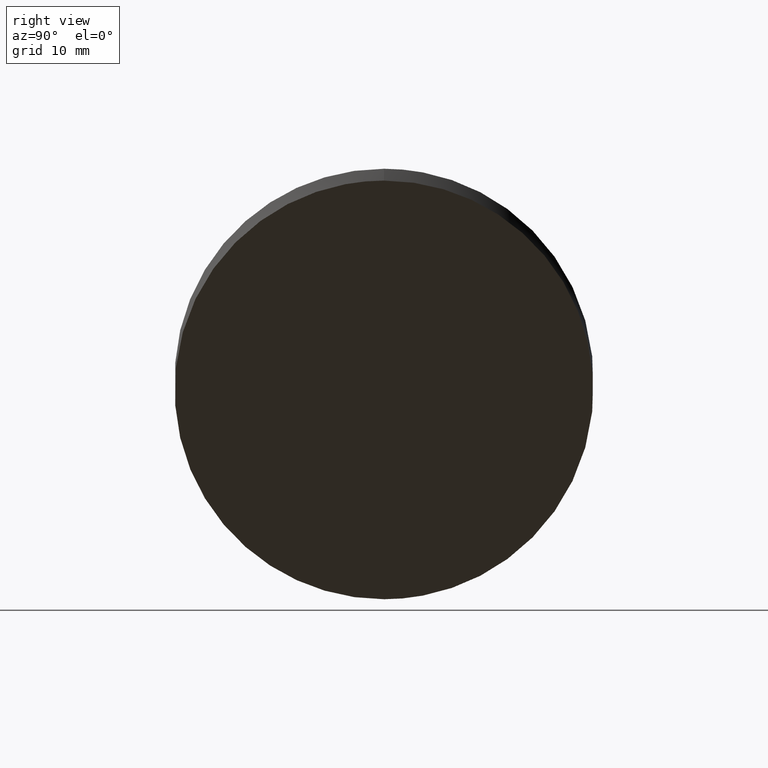
[diagram: clean part render]
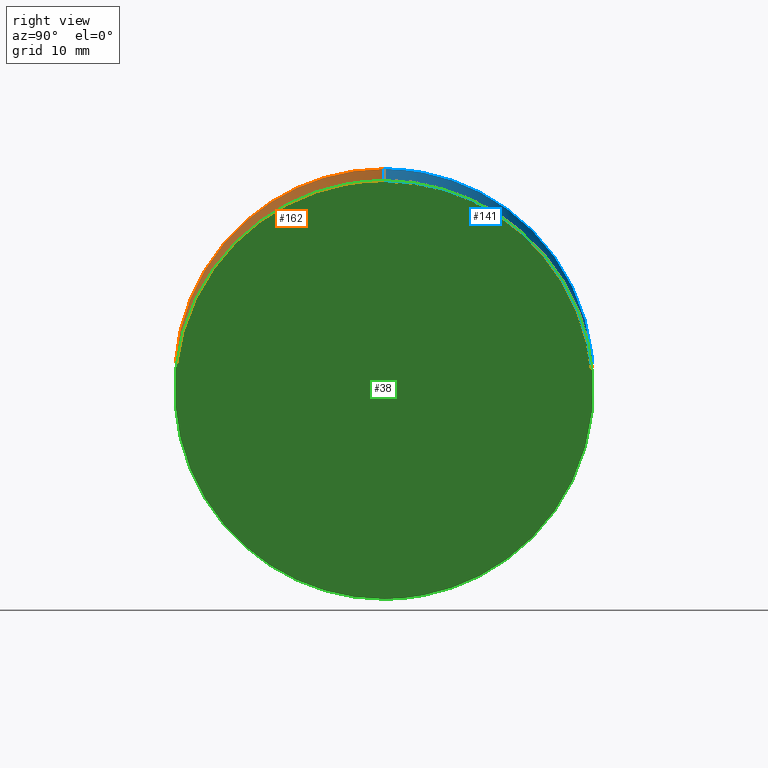
[diagram: same view with three faces highlighted in distinct colors, each labeled with its STEP entity id]
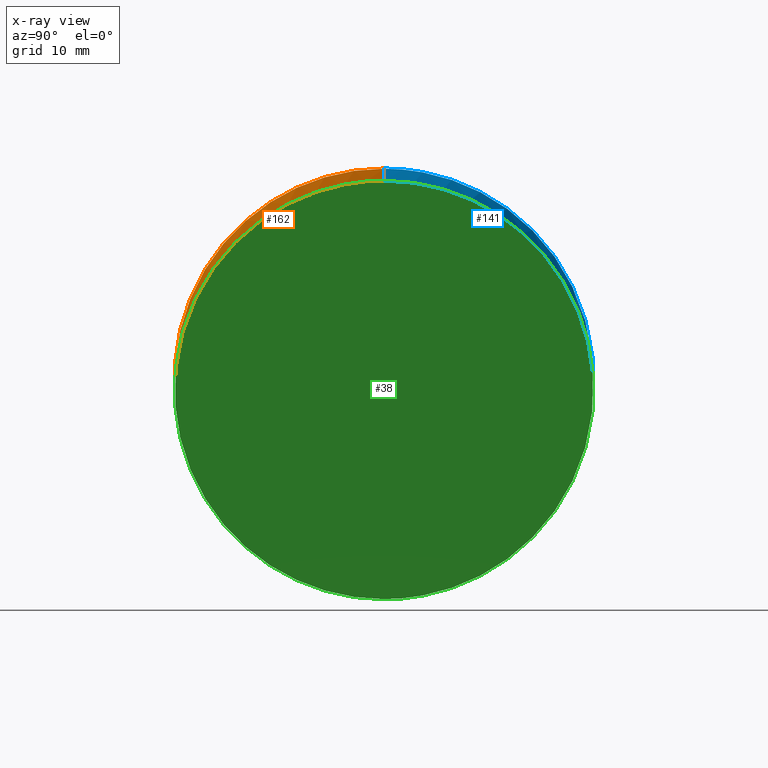
[diagram: x-ray of the same camera — body ghosted, the three highlighted faces saturated]
A machine part, right view with three faces highlighted in distinct colors.
The next image is the same camera in x-ray (body ghosted, the three faces saturated) — at least one of them is partly hidden behind the body in this view.
Their STEP definitions:

[orange] entity #162 — the highlighted cylindrical surface (partial cylindrical patch) has radius 25 mm, axis along (-0, -0, -1).
#1 = VERTEX_POINT ( 'NONE', #118 ) ;
#2 = AXIS2_PLACEMENT_3D ( 'NONE', #39, #83, #160 ) ;
#5 = CARTESIAN_POINT ( 'NONE',  ( -25.00000000000000000, 0.000000000000000000, 7.366540713605735036 ) ) ;
#10 = CARTESIAN_POINT ( 'NONE',  ( 25.00000000000000000, 3.061616997868382254E-15, 55.95232715123241007 ) ) ;
#13 = ORIENTED_EDGE ( 'NONE', *, *, #40, .T. ) ;
#21 = CARTESIAN_POINT ( 'NONE',  ( -25.00000000000001066, -49.99999999999997868, 5.952327151232617020 ) ) ;
#29 = EDGE_CURVE ( 'NONE', #101, #1, #92, .T. ) ;
#30 = ORIENTED_EDGE ( 'NONE', *, *, #110, .F. ) ;
#39 = CARTESIAN_POINT ( 'NONE',  ( 0.000000000000000000, 0.000000000000000000, 61.00000000000001421 ) ) ;
#40 = EDGE_CURVE ( 'NONE', #1, #66, #93, .T. ) ;
#42 =( BOUNDED_CURVE ( )  B_SPLINE_CURVE ( 3, ( #164, #21, #126, #97 ),
 .UNSPECIFIED., .F., .T. ) 
 B_SPLINE_CURVE_WITH_KNOTS ( ( 4, 4 ),
 ( 0.000000000000000000, 3.141592653589793116 ),
 .UNSPECIFIED. ) 
 CURVE ( )  GEOMETRIC_REPRESENTATION_ITEM ( )  RATIONAL_B_SPLINE_CURVE ( ( 1.000000000000000000, 0.3333333333333333703, 0.3333333333333333703, 1.000000000000000000 ) ) 
 REPRESENTATION_ITEM ( '' )  );
#54 = DIRECTION ( 'NONE',  ( -0.000000000000000000, -0.000000000000000000, -1.000000000000000000 ) ) ;
#62 = CARTESIAN_POINT ( 'NONE',  ( -25.00000000000000000, 0.000000000000000000, 61.00000000000001421 ) ) ;
#66 = VERTEX_POINT ( 'NONE', #161 ) ;
#67 = CARTESIAN_POINT ( 'NONE',  ( 25.00000000000001066, -50.00000000000000000, 57.36654071360556628 ) ) ;
#69 = CARTESIAN_POINT ( 'NONE',  ( 25.00000000000000000, 3.061616997868382254E-15, 61.00000000000001421 ) ) ;
#82 = FACE_OUTER_BOUND ( 'NONE', #152, .T. ) ;
#83 = DIRECTION ( 'NONE',  ( -0.000000000000000000, -0.000000000000000000, -1.000000000000000000 ) ) ;
#89 = CARTESIAN_POINT ( 'NONE',  ( -25.00000000000001066, -50.00000000000000000, 7.366540713605732371 ) ) ;
#92 =( BOUNDED_CURVE ( )  B_SPLINE_CURVE ( 3, ( #154, #67, #89, #5 ),
 .UNSPECIFIED., .F., .F. ) 
 B_SPLINE_CURVE_WITH_KNOTS ( ( 4, 4 ),
 ( 3.141592653589793116, 6.283185307179586232 ),
 .UNSPECIFIED. ) 
 CURVE ( )  GEOMETRIC_REPRESENTATION_ITEM ( )  RATIONAL_B_SPLINE_CURVE ( ( 1.000000000000000000, 0.3333333333333333703, 0.3333333333333333703, 1.000000000000000000 ) ) 
 REPRESENTATION_ITEM ( '' )  );
#93 = LINE ( 'NONE', #62, #163 ) ;
#97 = CARTESIAN_POINT ( 'NONE',  ( 25.00000000000000000, 3.061616997868382254E-15, 55.95232715123241007 ) ) ;
#101 = VERTEX_POINT ( 'NONE', #109 ) ;
#109 = CARTESIAN_POINT ( 'NONE',  ( 25.00000000000000000, 3.061616997868382254E-15, 57.36654071360555918 ) ) ;
#110 = EDGE_CURVE ( 'NONE', #101, #113, #158, .T. ) ;
#113 = VERTEX_POINT ( 'NONE', #10 ) ;
#114 = VECTOR ( 'NONE', #54, 1000.000000000000000 ) ;
#115 = ORIENTED_EDGE ( 'NONE', *, *, #150, .T. ) ;
#118 = CARTESIAN_POINT ( 'NONE',  ( -25.00000000000000000, 0.000000000000000000, 7.366540713605735036 ) ) ;
#126 = CARTESIAN_POINT ( 'NONE',  ( 25.00000000000000000, -49.99999999999997868, 55.95232715123241007 ) ) ;
#130 = ORIENTED_EDGE ( 'NONE', *, *, #29, .T. ) ;
#138 = CYLINDRICAL_SURFACE ( 'NONE', #2, 25.00000000000000000 ) ;
#146 = DIRECTION ( 'NONE',  ( -0.000000000000000000, -0.000000000000000000, -1.000000000000000000 ) ) ;
#150 = EDGE_CURVE ( 'NONE', #66, #113, #42, .T. ) ;
#152 = EDGE_LOOP ( 'NONE', ( #30, #130, #13, #115 ) ) ;
#154 = CARTESIAN_POINT ( 'NONE',  ( 25.00000000000000000, 3.061616997868382254E-15, 57.36654071360555918 ) ) ;
#158 = LINE ( 'NONE', #69, #114 ) ;
#160 = DIRECTION ( 'NONE',  ( -1.000000000000000000, 0.000000000000000000, 0.000000000000000000 ) ) ;
#161 = CARTESIAN_POINT ( 'NONE',  ( -25.00000000000000000, 0.000000000000000000, 5.952327151232624125 ) ) ;
#162 = ADVANCED_FACE ( 'NONE', ( #82 ), #138, .T. ) ;
#163 = VECTOR ( 'NONE', #146, 1000.000000000000000 ) ;
#164 = CARTESIAN_POINT ( 'NONE',  ( -25.00000000000000000, 0.000000000000000000, 5.952327151232624125 ) ) ;

[blue] entity #141 — the highlighted cylindrical surface (partial cylindrical patch) has radius 25 mm, axis along (-0, -0, -1).
#1 = VERTEX_POINT ( 'NONE', #118 ) ;
#10 = CARTESIAN_POINT ( 'NONE',  ( 25.00000000000000000, 3.061616997868382254E-15, 55.95232715123241007 ) ) ;
#14 = EDGE_CURVE ( 'NONE', #1, #101, #34, .T. ) ;
#23 = CARTESIAN_POINT ( 'NONE',  ( 25.00000000000002132, 49.99999999999997868, 55.95232715123243139 ) ) ;
#25 = CARTESIAN_POINT ( 'NONE',  ( -25.00000000000001066, 49.99999999999997868, 5.952327151232617020 ) ) ;
#34 =( BOUNDED_CURVE ( )  B_SPLINE_CURVE ( 3, ( #144, #46, #76, #132 ),
 .UNSPECIFIED., .F., .F. ) 
 B_SPLINE_CURVE_WITH_KNOTS ( ( 4, 4 ),
 ( 0.000000000000000000, 3.141592653589793116 ),
 .UNSPECIFIED. ) 
 CURVE ( )  GEOMETRIC_REPRESENTATION_ITEM ( )  RATIONAL_B_SPLINE_CURVE ( ( 1.000000000000000000, 0.3333333333333333703, 0.3333333333333333703, 1.000000000000000000 ) ) 
 REPRESENTATION_ITEM ( '' )  );
#40 = EDGE_CURVE ( 'NONE', #1, #66, #93, .T. ) ;
#44 = ORIENTED_EDGE ( 'NONE', *, *, #14, .T. ) ;
#46 = CARTESIAN_POINT ( 'NONE',  ( -25.00000000000001066, 50.00000000000000000, 7.366540713605732371 ) ) ;
#54 = DIRECTION ( 'NONE',  ( -0.000000000000000000, -0.000000000000000000, -1.000000000000000000 ) ) ;
#56 = DIRECTION ( 'NONE',  ( -0.000000000000000000, -0.000000000000000000, -1.000000000000000000 ) ) ;
#59 = ORIENTED_EDGE ( 'NONE', *, *, #110, .T. ) ;
#62 = CARTESIAN_POINT ( 'NONE',  ( -25.00000000000000000, 0.000000000000000000, 61.00000000000001421 ) ) ;
#66 = VERTEX_POINT ( 'NONE', #161 ) ;
#69 = CARTESIAN_POINT ( 'NONE',  ( 25.00000000000000000, 3.061616997868382254E-15, 61.00000000000001421 ) ) ;
#70 = EDGE_CURVE ( 'NONE', #113, #66, #129, .T. ) ;
#74 = ORIENTED_EDGE ( 'NONE', *, *, #40, .F. ) ;
#76 = CARTESIAN_POINT ( 'NONE',  ( 25.00000000000000000, 50.00000000000000000, 57.36654071360555207 ) ) ;
#87 = ORIENTED_EDGE ( 'NONE', *, *, #70, .T. ) ;
#93 = LINE ( 'NONE', #62, #163 ) ;
#95 = CARTESIAN_POINT ( 'NONE',  ( 25.00000000000000000, 3.061616997868382254E-15, 55.95232715123241007 ) ) ;
#101 = VERTEX_POINT ( 'NONE', #109 ) ;
#106 = EDGE_LOOP ( 'NONE', ( #44, #59, #87, #74 ) ) ;
#109 = CARTESIAN_POINT ( 'NONE',  ( 25.00000000000000000, 3.061616997868382254E-15, 57.36654071360555918 ) ) ;
#110 = EDGE_CURVE ( 'NONE', #101, #113, #158, .T. ) ;
#111 = CARTESIAN_POINT ( 'NONE',  ( 0.000000000000000000, 0.000000000000000000, 61.00000000000001421 ) ) ;
#113 = VERTEX_POINT ( 'NONE', #10 ) ;
#114 = VECTOR ( 'NONE', #54, 1000.000000000000000 ) ;
#118 = CARTESIAN_POINT ( 'NONE',  ( -25.00000000000000000, 0.000000000000000000, 7.366540713605735036 ) ) ;
#127 = CYLINDRICAL_SURFACE ( 'NONE', #156, 25.00000000000000000 ) ;
#129 =( BOUNDED_CURVE ( )  B_SPLINE_CURVE ( 3, ( #95, #23, #25, #174 ),
 .UNSPECIFIED., .F., .T. ) 
 B_SPLINE_CURVE_WITH_KNOTS ( ( 4, 4 ),
 ( 3.141592653589793116, 6.283185307179586232 ),
 .UNSPECIFIED. ) 
 CURVE ( )  GEOMETRIC_REPRESENTATION_ITEM ( )  RATIONAL_B_SPLINE_CURVE ( ( 1.000000000000000000, 0.3333333333333333703, 0.3333333333333333703, 1.000000000000000000 ) ) 
 REPRESENTATION_ITEM ( '' )  );
#132 = CARTESIAN_POINT ( 'NONE',  ( 25.00000000000000000, 3.061616997868382254E-15, 57.36654071360555918 ) ) ;
#139 = FACE_OUTER_BOUND ( 'NONE', #106, .T. ) ;
#141 = ADVANCED_FACE ( 'NONE', ( #139 ), #127, .T. ) ;
#144 = CARTESIAN_POINT ( 'NONE',  ( -25.00000000000000000, 0.000000000000000000, 7.366540713605735036 ) ) ;
#146 = DIRECTION ( 'NONE',  ( -0.000000000000000000, -0.000000000000000000, -1.000000000000000000 ) ) ;
#156 = AXIS2_PLACEMENT_3D ( 'NONE', #111, #56, #175 ) ;
#158 = LINE ( 'NONE', #69, #114 ) ;
#161 = CARTESIAN_POINT ( 'NONE',  ( -25.00000000000000000, 0.000000000000000000, 5.952327151232624125 ) ) ;
#163 = VECTOR ( 'NONE', #146, 1000.000000000000000 ) ;
#174 = CARTESIAN_POINT ( 'NONE',  ( -25.00000000000000000, 0.000000000000000000, 5.952327151232624125 ) ) ;
#175 = DIRECTION ( 'NONE',  ( -1.000000000000000000, 0.000000000000000000, 0.000000000000000000 ) ) ;

[green] entity #38 — the highlighted planar face has unit normal (-0.7071, 0, 0.7071).
#10 = CARTESIAN_POINT ( 'NONE',  ( 25.00000000000000000, 3.061616997868382254E-15, 55.95232715123241007 ) ) ;
#11 = AXIS2_PLACEMENT_3D ( 'NONE', #48, #51, #155 ) ;
#21 = CARTESIAN_POINT ( 'NONE',  ( -25.00000000000001066, -49.99999999999997868, 5.952327151232617020 ) ) ;
#23 = CARTESIAN_POINT ( 'NONE',  ( 25.00000000000002132, 49.99999999999997868, 55.95232715123243139 ) ) ;
#25 = CARTESIAN_POINT ( 'NONE',  ( -25.00000000000001066, 49.99999999999997868, 5.952327151232617020 ) ) ;
#38 = ADVANCED_FACE ( 'NONE', ( #120 ), #171, .F. ) ;
#42 =( BOUNDED_CURVE ( )  B_SPLINE_CURVE ( 3, ( #164, #21, #126, #97 ),
 .UNSPECIFIED., .F., .T. ) 
 B_SPLINE_CURVE_WITH_KNOTS ( ( 4, 4 ),
 ( 0.000000000000000000, 3.141592653589793116 ),
 .UNSPECIFIED. ) 
 CURVE ( )  GEOMETRIC_REPRESENTATION_ITEM ( )  RATIONAL_B_SPLINE_CURVE ( ( 1.000000000000000000, 0.3333333333333333703, 0.3333333333333333703, 1.000000000000000000 ) ) 
 REPRESENTATION_ITEM ( '' )  );
#48 = CARTESIAN_POINT ( 'NONE',  ( -37.53059138547573781, -30.50000000000000711, -6.578264234243048847 ) ) ;
#51 = DIRECTION ( 'NONE',  ( -0.7071067811865461294, 0.000000000000000000, 0.7071067811865490160 ) ) ;
#61 = ORIENTED_EDGE ( 'NONE', *, *, #70, .F. ) ;
#66 = VERTEX_POINT ( 'NONE', #161 ) ;
#70 = EDGE_CURVE ( 'NONE', #113, #66, #129, .T. ) ;
#95 = CARTESIAN_POINT ( 'NONE',  ( 25.00000000000000000, 3.061616997868382254E-15, 55.95232715123241007 ) ) ;
#97 = CARTESIAN_POINT ( 'NONE',  ( 25.00000000000000000, 3.061616997868382254E-15, 55.95232715123241007 ) ) ;
#112 = EDGE_LOOP ( 'NONE', ( #117, #61 ) ) ;
#113 = VERTEX_POINT ( 'NONE', #10 ) ;
#117 = ORIENTED_EDGE ( 'NONE', *, *, #150, .F. ) ;
#120 = FACE_OUTER_BOUND ( 'NONE', #112, .T. ) ;
#126 = CARTESIAN_POINT ( 'NONE',  ( 25.00000000000000000, -49.99999999999997868, 55.95232715123241007 ) ) ;
#129 =( BOUNDED_CURVE ( )  B_SPLINE_CURVE ( 3, ( #95, #23, #25, #174 ),
 .UNSPECIFIED., .F., .T. ) 
 B_SPLINE_CURVE_WITH_KNOTS ( ( 4, 4 ),
 ( 3.141592653589793116, 6.283185307179586232 ),
 .UNSPECIFIED. ) 
 CURVE ( )  GEOMETRIC_REPRESENTATION_ITEM ( )  RATIONAL_B_SPLINE_CURVE ( ( 1.000000000000000000, 0.3333333333333333703, 0.3333333333333333703, 1.000000000000000000 ) ) 
 REPRESENTATION_ITEM ( '' )  );
#150 = EDGE_CURVE ( 'NONE', #66, #113, #42, .T. ) ;
#155 = DIRECTION ( 'NONE',  ( 0.7071067811865489050, 0.000000000000000000, 0.7071067811865460184 ) ) ;
#161 = CARTESIAN_POINT ( 'NONE',  ( -25.00000000000000000, 0.000000000000000000, 5.952327151232624125 ) ) ;
#164 = CARTESIAN_POINT ( 'NONE',  ( -25.00000000000000000, 0.000000000000000000, 5.952327151232624125 ) ) ;
#171 = PLANE ( 'NONE',  #11 ) ;
#174 = CARTESIAN_POINT ( 'NONE',  ( -25.00000000000000000, 0.000000000000000000, 5.952327151232624125 ) ) ;